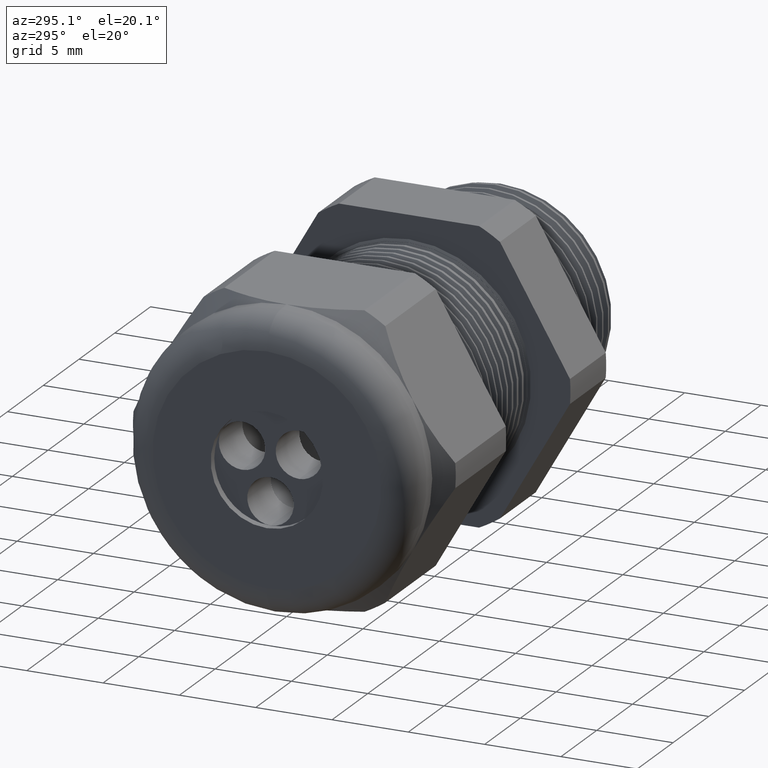
[diagram: clean part render]
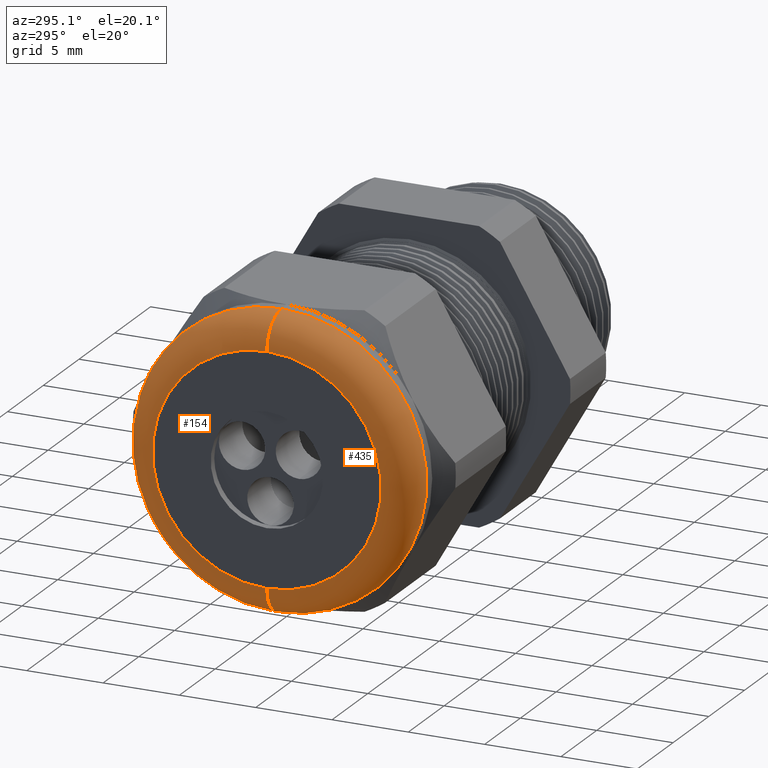
[diagram: same view with one multi-face feature highlighted, each face labeled with its STEP entity id]
A machine part, auxiliary view. The highlighted faces form ONE feature: a constant-radius fillet chain: 2 tangent blend faces with common blend radius 2.032 mm. The faces share edges in the B-rep.
Their STEP definitions:
[1] entity #154 (Torus):
#138 = EDGE_CURVE ( 'NONE', #212, #218, #1624, .T. ) ;
#154 = ADVANCED_FACE ( 'NONE', ( #1653 ), #1714, .T. ) ;
#208 = EDGE_LOOP ( 'NONE', ( #209, #213, #216, #219 ) ) ;
#209 = ORIENTED_EDGE ( 'NONE', *, *, #210, .F. ) ;
#210 = EDGE_CURVE ( 'NONE', #211, #212, #1790, .T. ) ;
#211 = VERTEX_POINT ( 'NONE', #1785 ) ;
#212 = VERTEX_POINT ( 'NONE', #1784 ) ;
#213 = ORIENTED_EDGE ( 'NONE', *, *, #214, .T. ) ;
#214 = EDGE_CURVE ( 'NONE', #211, #215, #1783, .T. ) ;
#215 = VERTEX_POINT ( 'NONE', #1778 ) ;
#216 = ORIENTED_EDGE ( 'NONE', *, *, #217, .F. ) ;
#217 = EDGE_CURVE ( 'NONE', #218, #215, #1840, .T. ) ;
#218 = VERTEX_POINT ( 'NONE', #1835 ) ;
#219 = ORIENTED_EDGE ( 'NONE', *, *, #138, .F. ) ;
#1620 = DIRECTION ( 'NONE',  ( 0.0000000000000000000, 0.0000000000000000000, -1.000000000000000000 ) ) ;
#1621 = DIRECTION ( 'NONE',  ( 0.0000000000000000000, -1.000000000000000000, 0.0000000000000000000 ) ) ;
#1622 = CARTESIAN_POINT ( 'NONE',  ( -1.210000000000000000, 0.0000000000000000000, 0.2950000000000001000 ) ) ;
#1623 = AXIS2_PLACEMENT_3D ( 'NONE', #1622, #1621, #1620 ) ;
#1624 = CIRCLE ( 'NONE', #1623, 0.08000000000000000200 ) ;
#1653 = FACE_OUTER_BOUND ( 'NONE', #208, .T. ) ;
#1710 = DIRECTION ( 'NONE',  ( 0.0000000000000000000, 0.0000000000000000000, 1.000000000000000000 ) ) ;
#1711 = DIRECTION ( 'NONE',  ( -1.000000000000000000, 0.0000000000000000000, 0.0000000000000000000 ) ) ;
#1712 = CARTESIAN_POINT ( 'NONE',  ( -1.210000000000000000, 0.0000000000000000000, 0.0000000000000000000 ) ) ;
#1713 = AXIS2_PLACEMENT_3D ( 'NONE', #1712, #1711, #1710 ) ;
#1714 = TOROIDAL_SURFACE ( 'NONE', #1713, 0.2950000000000001000, 0.08000000000000000200 ) ;
#1778 = CARTESIAN_POINT ( 'NONE',  ( -1.289999999999999800, 4.102566777143634000E-017, -0.2950000000000001000 ) ) ;
#1779 = DIRECTION ( 'NONE',  ( 0.0000000000000000000, -1.224646799147353500E-016, 1.000000000000000000 ) ) ;
#1780 = DIRECTION ( 'NONE',  ( 0.0000000000000000000, 1.000000000000000000, 1.224646799147353200E-016 ) ) ;
#1781 = CARTESIAN_POINT ( 'NONE',  ( -1.210000000000000000, 3.612708057484693200E-017, -0.2950000000000001000 ) ) ;
#1782 = AXIS2_PLACEMENT_3D ( 'NONE', #1781, #1780, #1779 ) ;
#1783 = CIRCLE ( 'NONE', #1782, 0.08000000000000000200 ) ;
#1784 = CARTESIAN_POINT ( 'NONE',  ( -1.210000000000000000, 4.592425496802576100E-017, 0.3750000000000001100 ) ) ;
#1785 = CARTESIAN_POINT ( 'NONE',  ( -1.210000000000000000, 0.0000000000000000000, -0.3750000000000001100 ) ) ;
#1786 = DIRECTION ( 'NONE',  ( 0.0000000000000000000, 0.0000000000000000000, 1.000000000000000000 ) ) ;
#1787 = DIRECTION ( 'NONE',  ( 1.000000000000000000, 0.0000000000000000000, 0.0000000000000000000 ) ) ;
#1788 = CARTESIAN_POINT ( 'NONE',  ( -1.210000000000000000, 0.0000000000000000000, 0.0000000000000000000 ) ) ;
#1789 = AXIS2_PLACEMENT_3D ( 'NONE', #1788, #1787, #1786 ) ;
#1790 = CIRCLE ( 'NONE', #1789, 0.3750000000000001100 ) ;
#1835 = CARTESIAN_POINT ( 'NONE',  ( -1.289999999999999800, 0.0000000000000000000, 0.2950000000000001000 ) ) ;
#1836 = DIRECTION ( 'NONE',  ( 0.0000000000000000000, 0.0000000000000000000, 1.000000000000000000 ) ) ;
#1837 = DIRECTION ( 'NONE',  ( -1.000000000000000000, 0.0000000000000000000, 0.0000000000000000000 ) ) ;
#1838 = CARTESIAN_POINT ( 'NONE',  ( -1.289999999999999800, 0.0000000000000000000, 0.0000000000000000000 ) ) ;
#1839 = AXIS2_PLACEMENT_3D ( 'NONE', #1838, #1837, #1836 ) ;
#1840 = CIRCLE ( 'NONE', #1839, 0.2950000000000001000 ) ;
[2] entity #435 (Torus):
#138 = EDGE_CURVE ( 'NONE', #212, #218, #1624, .T. ) ;
#211 = VERTEX_POINT ( 'NONE', #1785 ) ;
#212 = VERTEX_POINT ( 'NONE', #1784 ) ;
#214 = EDGE_CURVE ( 'NONE', #211, #215, #1783, .T. ) ;
#215 = VERTEX_POINT ( 'NONE', #1778 ) ;
#218 = VERTEX_POINT ( 'NONE', #1835 ) ;
#435 = ADVANCED_FACE ( 'NONE', ( #2134 ), #2131, .T. ) ;
#436 = EDGE_LOOP ( 'NONE', ( #437, #438, #439, #440 ) ) ;
#437 = ORIENTED_EDGE ( 'NONE', *, *, #214, .F. ) ;
#438 = ORIENTED_EDGE ( 'NONE', *, *, #5011, .F. ) ;
#439 = ORIENTED_EDGE ( 'NONE', *, *, #138, .T. ) ;
#440 = ORIENTED_EDGE ( 'NONE', *, *, #5028, .F. ) ;
#1620 = DIRECTION ( 'NONE',  ( 0.0000000000000000000, 0.0000000000000000000, -1.000000000000000000 ) ) ;
#1621 = DIRECTION ( 'NONE',  ( 0.0000000000000000000, -1.000000000000000000, 0.0000000000000000000 ) ) ;
#1622 = CARTESIAN_POINT ( 'NONE',  ( -1.210000000000000000, 0.0000000000000000000, 0.2950000000000001000 ) ) ;
#1623 = AXIS2_PLACEMENT_3D ( 'NONE', #1622, #1621, #1620 ) ;
#1624 = CIRCLE ( 'NONE', #1623, 0.08000000000000000200 ) ;
#1778 = CARTESIAN_POINT ( 'NONE',  ( -1.289999999999999800, 4.102566777143634000E-017, -0.2950000000000001000 ) ) ;
#1779 = DIRECTION ( 'NONE',  ( 0.0000000000000000000, -1.224646799147353500E-016, 1.000000000000000000 ) ) ;
#1780 = DIRECTION ( 'NONE',  ( 0.0000000000000000000, 1.000000000000000000, 1.224646799147353200E-016 ) ) ;
#1781 = CARTESIAN_POINT ( 'NONE',  ( -1.210000000000000000, 3.612708057484693200E-017, -0.2950000000000001000 ) ) ;
#1782 = AXIS2_PLACEMENT_3D ( 'NONE', #1781, #1780, #1779 ) ;
#1783 = CIRCLE ( 'NONE', #1782, 0.08000000000000000200 ) ;
#1784 = CARTESIAN_POINT ( 'NONE',  ( -1.210000000000000000, 4.592425496802576100E-017, 0.3750000000000001100 ) ) ;
#1785 = CARTESIAN_POINT ( 'NONE',  ( -1.210000000000000000, 0.0000000000000000000, -0.3750000000000001100 ) ) ;
#1835 = CARTESIAN_POINT ( 'NONE',  ( -1.289999999999999800, 0.0000000000000000000, 0.2950000000000001000 ) ) ;
#2131 = TOROIDAL_SURFACE ( 'NONE', #2133, 0.2950000000000001000, 0.08000000000000000200 ) ;
#2133 = AXIS2_PLACEMENT_3D ( 'NONE', #2138, #2193, #2192 ) ;
#2134 = FACE_OUTER_BOUND ( 'NONE', #436, .T. ) ;
#2138 = CARTESIAN_POINT ( 'NONE',  ( -1.210000000000000000, 0.0000000000000000000, 0.0000000000000000000 ) ) ;
#2192 = DIRECTION ( 'NONE',  ( 0.0000000000000000000, 0.0000000000000000000, 1.000000000000000000 ) ) ;
#2193 = DIRECTION ( 'NONE',  ( -1.000000000000000000, 0.0000000000000000000, 0.0000000000000000000 ) ) ;
#4506 = DIRECTION ( 'NONE',  ( 0.0000000000000000000, 0.0000000000000000000, 1.000000000000000000 ) ) ;
#4507 = DIRECTION ( 'NONE',  ( 1.000000000000000000, 0.0000000000000000000, 0.0000000000000000000 ) ) ;
#4508 = AXIS2_PLACEMENT_3D ( 'NONE', #4513, #4507, #4506 ) ;
#4509 = CIRCLE ( 'NONE', #4508, 0.3750000000000001100 ) ;
#4513 = CARTESIAN_POINT ( 'NONE',  ( -1.210000000000000000, 0.0000000000000000000, 0.0000000000000000000 ) ) ;
#4537 = DIRECTION ( 'NONE',  ( 0.0000000000000000000, 0.0000000000000000000, 1.000000000000000000 ) ) ;
#4538 = DIRECTION ( 'NONE',  ( -1.000000000000000000, 0.0000000000000000000, 0.0000000000000000000 ) ) ;
#4539 = CARTESIAN_POINT ( 'NONE',  ( -1.289999999999999800, 0.0000000000000000000, 0.0000000000000000000 ) ) ;
#4540 = AXIS2_PLACEMENT_3D ( 'NONE', #4539, #4538, #4537 ) ;
#4541 = CIRCLE ( 'NONE', #4540, 0.2950000000000001000 ) ;
#5011 = EDGE_CURVE ( 'NONE', #212, #211, #4509, .T. ) ;
#5028 = EDGE_CURVE ( 'NONE', #215, #218, #4541, .T. ) ;